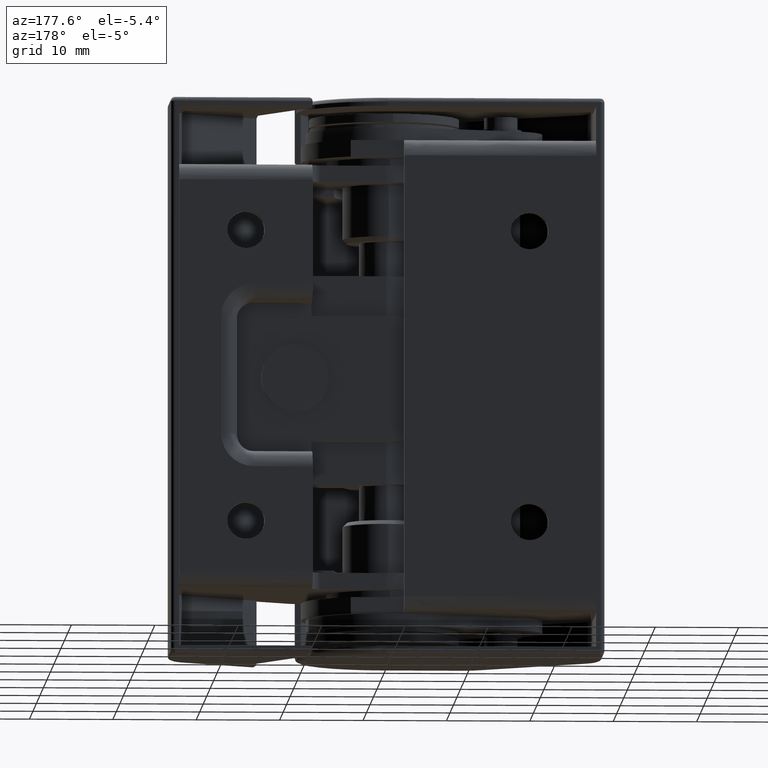
[diagram: clean part render]
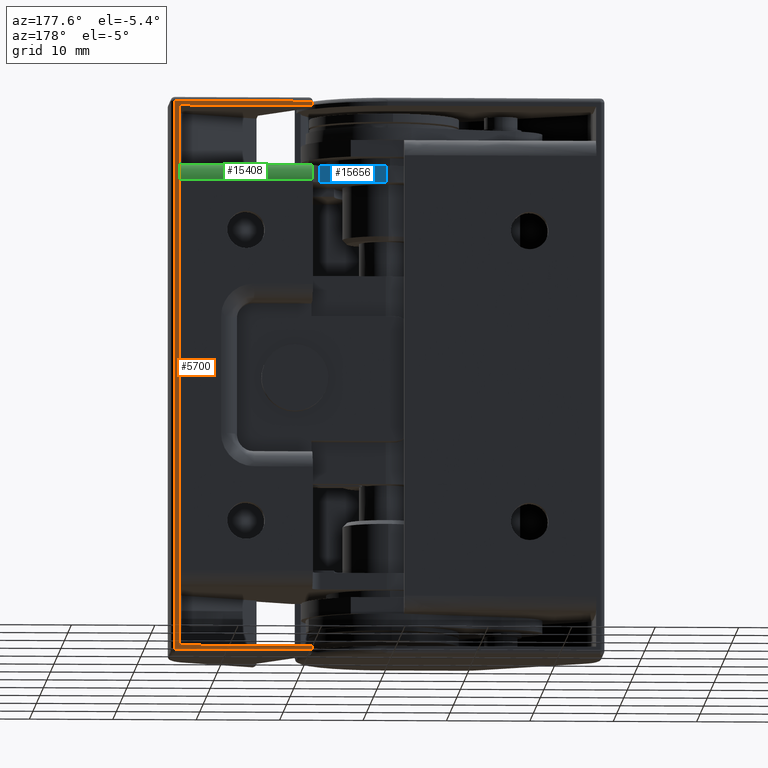
[diagram: same view with three faces highlighted in distinct colors, each labeled with its STEP entity id]
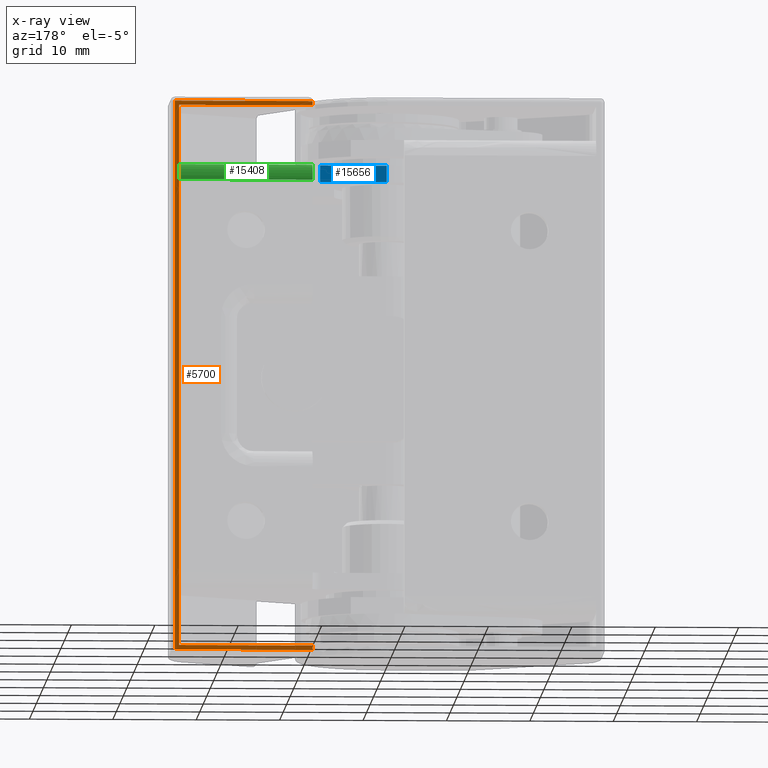
[diagram: x-ray of the same camera — body ghosted, the three highlighted faces saturated]
A machine part, auxiliary view with three faces highlighted in distinct colors.
The next image is the same camera in x-ray (body ghosted, the three faces saturated) — at least one of them is partly hidden behind the body in this view.
Their STEP definitions:

[orange] entity #5700 — the highlighted face is a freeform B-spline surface patch.
#3182=CARTESIAN_POINT('',(8.999999999998851,10.500000000000000,66.500000000000000));
#3183=VERTEX_POINT('',#3182);
#3495=CARTESIAN_POINT('',(8.999999999998851,10.500000000000000,66.0));
#3496=VERTEX_POINT('',#3495);
#3497=CARTESIAN_POINT('',(8.999999999998851,10.500000000000000,66.500000000000000));
#3498=CARTESIAN_POINT('',(8.999999999998851,10.500000000000000,66.0));
#3499=QUASI_UNIFORM_CURVE('',1,(#3497,#3498),.UNSPECIFIED.,.F.,.U.);
#3500=EDGE_CURVE('',#3183,#3496,#3499,.T.);
#3651=CARTESIAN_POINT('',(8.999999999998851,10.500000000000000,0.499999999999945));
#3652=VERTEX_POINT('',#3651);
#3729=CARTESIAN_POINT('',(25.499999999998948,10.500000000000000,0.499999999999945));
#3730=VERTEX_POINT('',#3729);
#3746=CARTESIAN_POINT('',(25.499999999998948,10.500000000000000,0.499999999999945));
#3747=CARTESIAN_POINT('',(8.999999999998851,10.500000000000000,0.499999999999945));
#3748=QUASI_UNIFORM_CURVE('',1,(#3746,#3747),.UNSPECIFIED.,.F.,.U.);
#3749=EDGE_CURVE('',#3730,#3652,#3748,.T.);
#3995=CARTESIAN_POINT('',(25.499999999998948,10.500000000000000,66.500000000000000));
#3996=VERTEX_POINT('',#3995);
#4010=CARTESIAN_POINT('',(8.999999999998851,10.500000000000000,66.500000000000000));
#4011=CARTESIAN_POINT('',(25.499999999998948,10.500000000000000,66.500000000000000));
#4012=QUASI_UNIFORM_CURVE('',1,(#4010,#4011),.UNSPECIFIED.,.F.,.U.);
#4013=EDGE_CURVE('',#3183,#3996,#4012,.T.);
#5366=CARTESIAN_POINT('',(8.999999999998851,10.500000000000000,1.0));
#5367=VERTEX_POINT('',#5366);
#5409=CARTESIAN_POINT('',(24.999999999999101,10.500000000000000,0.999999999999958));
#5410=VERTEX_POINT('',#5409);
#5416=CARTESIAN_POINT('',(8.999999999998851,10.500000000000000,1.0));
#5417=CARTESIAN_POINT('',(24.999999999999101,10.500000000000000,0.999999999999958));
#5418=QUASI_UNIFORM_CURVE('',1,(#5416,#5417),.UNSPECIFIED.,.F.,.U.);
#5419=EDGE_CURVE('',#5367,#5410,#5418,.T.);
#5430=CARTESIAN_POINT('',(24.999999999999101,10.500000000000000,66.0));
#5431=VERTEX_POINT('',#5430);
#5432=CARTESIAN_POINT('',(8.999999999998851,10.500000000000000,66.0));
#5433=CARTESIAN_POINT('',(24.999999999999101,10.500000000000000,66.0));
#5434=QUASI_UNIFORM_CURVE('',1,(#5432,#5433),.UNSPECIFIED.,.F.,.U.);
#5435=EDGE_CURVE('',#3496,#5431,#5434,.T.);
#5638=CARTESIAN_POINT('',(25.499999999998948,10.500000000000000,66.500000000000000));
#5639=CARTESIAN_POINT('',(25.499999999998948,10.500000000000000,0.499999999999945));
#5640=QUASI_UNIFORM_CURVE('',1,(#5638,#5639),.UNSPECIFIED.,.F.,.U.);
#5641=EDGE_CURVE('',#3996,#3730,#5640,.T.);
#5652=CARTESIAN_POINT('',(8.999999999998851,10.500000000000000,1.0));
#5653=CARTESIAN_POINT('',(8.999999999998851,10.500000000000000,0.499999999999945));
#5654=QUASI_UNIFORM_CURVE('',1,(#5652,#5653),.UNSPECIFIED.,.F.,.U.);
#5655=EDGE_CURVE('',#5367,#3652,#5654,.T.);
#5681=CARTESIAN_POINT('',(8.175825031979048,10.500000000000000,-2.796699872079250));
#5682=CARTESIAN_POINT('',(8.175825031979048,10.500000000000000,69.796701642337126));
#5683=CARTESIAN_POINT('',(26.324175410583241,10.500000000000000,-2.796699872079250));
#5684=CARTESIAN_POINT('',(26.324175410583241,10.500000000000000,69.796701642337126));
#5685=B_SPLINE_SURFACE_WITH_KNOTS('',1,1,((#5681,#5683),(#5682,#5684)),.UNSPECIFIED.,.F.,.F.,.U.,(2,2),(2,2),(0.0,72.593401514416371),(0.0,18.148350378604199),.UNSPECIFIED.);
#5686=ORIENTED_EDGE('',*,*,#5641,.T.);
#5687=ORIENTED_EDGE('',*,*,#3749,.T.);
#5688=ORIENTED_EDGE('',*,*,#5655,.F.);
#5689=ORIENTED_EDGE('',*,*,#5419,.T.);
#5690=CARTESIAN_POINT('',(24.999999999999101,10.500000000000000,66.0));
#5691=CARTESIAN_POINT('',(24.999999999999101,10.500000000000000,0.999999999999958));
#5692=QUASI_UNIFORM_CURVE('',1,(#5690,#5691),.UNSPECIFIED.,.F.,.U.);
#5693=EDGE_CURVE('',#5431,#5410,#5692,.T.);
#5694=ORIENTED_EDGE('',*,*,#5693,.F.);
#5695=ORIENTED_EDGE('',*,*,#5435,.F.);
#5696=ORIENTED_EDGE('',*,*,#3500,.F.);
#5697=ORIENTED_EDGE('',*,*,#4013,.T.);
#5698=EDGE_LOOP('',(#5686,#5687,#5688,#5689,#5694,#5695,#5696,#5697));
#5699=FACE_OUTER_BOUND('',#5698,.T.);
#5700=ADVANCED_FACE('',(#5699),#5685,.T.);

[blue] entity #15656 — the highlighted face is a freeform B-spline surface patch.
#14061=CARTESIAN_POINT('',(8.000000000000101,7.999999999998210,59.0));
#14062=VERTEX_POINT('',#14061);
#14074=CARTESIAN_POINT('',(0.0,7.999999999998210,59.0));
#14075=VERTEX_POINT('',#14074);
#14076=CARTESIAN_POINT('',(8.000000000000101,7.999999999998210,59.0));
#14077=CARTESIAN_POINT('',(0.0,7.999999999998210,59.0));
#14078=QUASI_UNIFORM_CURVE('',1,(#14076,#14077),.UNSPECIFIED.,.F.,.U.);
#14079=EDGE_CURVE('',#14062,#14075,#14078,.T.);
#15490=CARTESIAN_POINT('',(0.0,7.999999999998210,57.0));
#15491=VERTEX_POINT('',#15490);
#15505=CARTESIAN_POINT('',(8.000000000000101,7.999999999998210,57.0));
#15506=VERTEX_POINT('',#15505);
#15507=CARTESIAN_POINT('',(8.000000000000101,7.999999999998210,57.0));
#15508=CARTESIAN_POINT('',(0.0,7.999999999998210,57.0));
#15509=QUASI_UNIFORM_CURVE('',1,(#15507,#15508),.UNSPECIFIED.,.F.,.U.);
#15510=EDGE_CURVE('',#15506,#15491,#15509,.T.);
#15631=CARTESIAN_POINT('',(0.0,7.999999999998210,57.0));
#15632=CARTESIAN_POINT('',(0.0,7.999999999998210,59.0));
#15633=QUASI_UNIFORM_CURVE('',1,(#15631,#15632),.UNSPECIFIED.,.F.,.U.);
#15634=EDGE_CURVE('',#15491,#14075,#15633,.T.);
#15641=CARTESIAN_POINT('',(8.399599984494557,7.999999999998210,56.900100003876382));
#15642=CARTESIAN_POINT('',(8.399599984494557,7.999999999998210,59.099900049767790));
#15643=CARTESIAN_POINT('',(-0.399600199071173,7.999999999998210,56.900100003876382));
#15644=CARTESIAN_POINT('',(-0.399600199071173,7.999999999998210,59.099900049767790));
#15645=B_SPLINE_SURFACE_WITH_KNOTS('',1,1,((#15641,#15643),(#15642,#15644)),.UNSPECIFIED.,.F.,.F.,.U.,(2,2),(2,2),(0.0,2.199800045891415),(0.0,8.799200183565731),.UNSPECIFIED.);
#15646=ORIENTED_EDGE('',*,*,#14079,.F.);
#15647=CARTESIAN_POINT('',(8.000000000000101,7.999999999998210,57.0));
#15648=CARTESIAN_POINT('',(8.000000000000101,7.999999999998210,59.0));
#15649=QUASI_UNIFORM_CURVE('',1,(#15647,#15648),.UNSPECIFIED.,.F.,.U.);
#15650=EDGE_CURVE('',#15506,#14062,#15649,.T.);
#15651=ORIENTED_EDGE('',*,*,#15650,.F.);
#15652=ORIENTED_EDGE('',*,*,#15510,.T.);
#15653=ORIENTED_EDGE('',*,*,#15634,.T.);
#15654=EDGE_LOOP('',(#15646,#15651,#15652,#15653));
#15655=FACE_OUTER_BOUND('',#15654,.T.);
#15656=ADVANCED_FACE('',(#15655),#15645,.F.);

[green] entity #15408 — the highlighted face is a freeform B-spline surface patch.
#14047=CARTESIAN_POINT('',(25.0,8.999999999997451,59.0));
#14048=VERTEX_POINT('',#14047);
#14054=CARTESIAN_POINT('',(9.0,9.000000000007338,59.0));
#14055=VERTEX_POINT('',#14054);
#14056=CARTESIAN_POINT('',(25.0,8.999999999997451,59.0));
#14057=CARTESIAN_POINT('',(9.0,9.000000000007338,59.0));
#14058=QUASI_UNIFORM_CURVE('',1,(#14056,#14057),.UNSPECIFIED.,.F.,.U.);
#14059=EDGE_CURVE('',#14048,#14055,#14058,.T.);
#15356=CARTESIAN_POINT('',(8.599999999999998,8.947646103391586,58.999314649951373));
#15357=CARTESIAN_POINT('',(25.410000000000000,8.947646103391586,58.999314649951373));
#15358=CARTESIAN_POINT('',(8.600000000000000,11.091648575493384,59.055457330519353));
#15359=CARTESIAN_POINT('',(25.410000000000007,11.091648575493384,59.055457330519353));
#15360=CARTESIAN_POINT('',(8.599999999999998,10.998096443160691,56.912761225259430));
#15361=CARTESIAN_POINT('',(25.410000000000000,10.998096443160691,56.912761225259430));
#15369=(BOUNDED_SURFACE()B_SPLINE_SURFACE(1,2,((#15356,#15358,#15360),(#15357,#15359,#15361)),.UNSPECIFIED.,.F.,.F.,.U.)B_SPLINE_SURFACE_WITH_KNOTS((2,2),(3,3),(0.0,16.810000000000009),(0.0,3.478498999687452),.UNSPECIFIED.)GEOMETRIC_REPRESENTATION_ITEM()RATIONAL_B_SPLINE_SURFACE(((1.0,0.681998360062498,1.0),(1.0,0.681998360062498,1.0)))REPRESENTATION_ITEM('')SURFACE());
#15370=CARTESIAN_POINT('',(9.0,10.999999999997460,57.0));
#15371=VERTEX_POINT('',#15370);
#15372=CARTESIAN_POINT('',(9.0,9.000000000007338,59.0));
#15373=CARTESIAN_POINT('',(9.000000000000002,10.999999999997410,59.0));
#15374=CARTESIAN_POINT('',(9.0,10.999999999997410,57.0));
#15382=(BOUNDED_CURVE()B_SPLINE_CURVE(2,(#15372,#15373,#15374),.UNSPECIFIED.,.F.,.U.)CURVE()GEOMETRIC_REPRESENTATION_ITEM()QUASI_UNIFORM_CURVE()RATIONAL_B_SPLINE_CURVE((1.0,0.707106781186548,1.0))REPRESENTATION_ITEM(''));
#15383=EDGE_CURVE('',#14055,#15371,#15382,.T.);
#15384=ORIENTED_EDGE('',*,*,#15383,.F.);
#15385=ORIENTED_EDGE('',*,*,#14059,.F.);
#15386=CARTESIAN_POINT('',(25.0,10.999999999997460,57.0));
#15387=VERTEX_POINT('',#15386);
#15388=CARTESIAN_POINT('',(25.0,10.999999999997410,57.0));
#15389=CARTESIAN_POINT('',(25.0,10.999999999997410,59.0));
#15390=CARTESIAN_POINT('',(25.0,8.999999999997410,59.000000000000007));
#15398=(BOUNDED_CURVE()B_SPLINE_CURVE(2,(#15388,#15389,#15390),.UNSPECIFIED.,.F.,.U.)CURVE()GEOMETRIC_REPRESENTATION_ITEM()QUASI_UNIFORM_CURVE()RATIONAL_B_SPLINE_CURVE((1.0,0.707106781186548,1.0))REPRESENTATION_ITEM(''));
#15399=EDGE_CURVE('',#15387,#14048,#15398,.T.);
#15400=ORIENTED_EDGE('',*,*,#15399,.F.);
#15401=CARTESIAN_POINT('',(9.0,10.999999999997460,57.0));
#15402=CARTESIAN_POINT('',(25.0,10.999999999997460,57.0));
#15403=QUASI_UNIFORM_CURVE('',1,(#15401,#15402),.UNSPECIFIED.,.F.,.U.);
#15404=EDGE_CURVE('',#15371,#15387,#15403,.T.);
#15405=ORIENTED_EDGE('',*,*,#15404,.F.);
#15406=EDGE_LOOP('',(#15384,#15385,#15400,#15405));
#15407=FACE_OUTER_BOUND('',#15406,.T.);
#15408=ADVANCED_FACE('',(#15407),#15369,.T.);